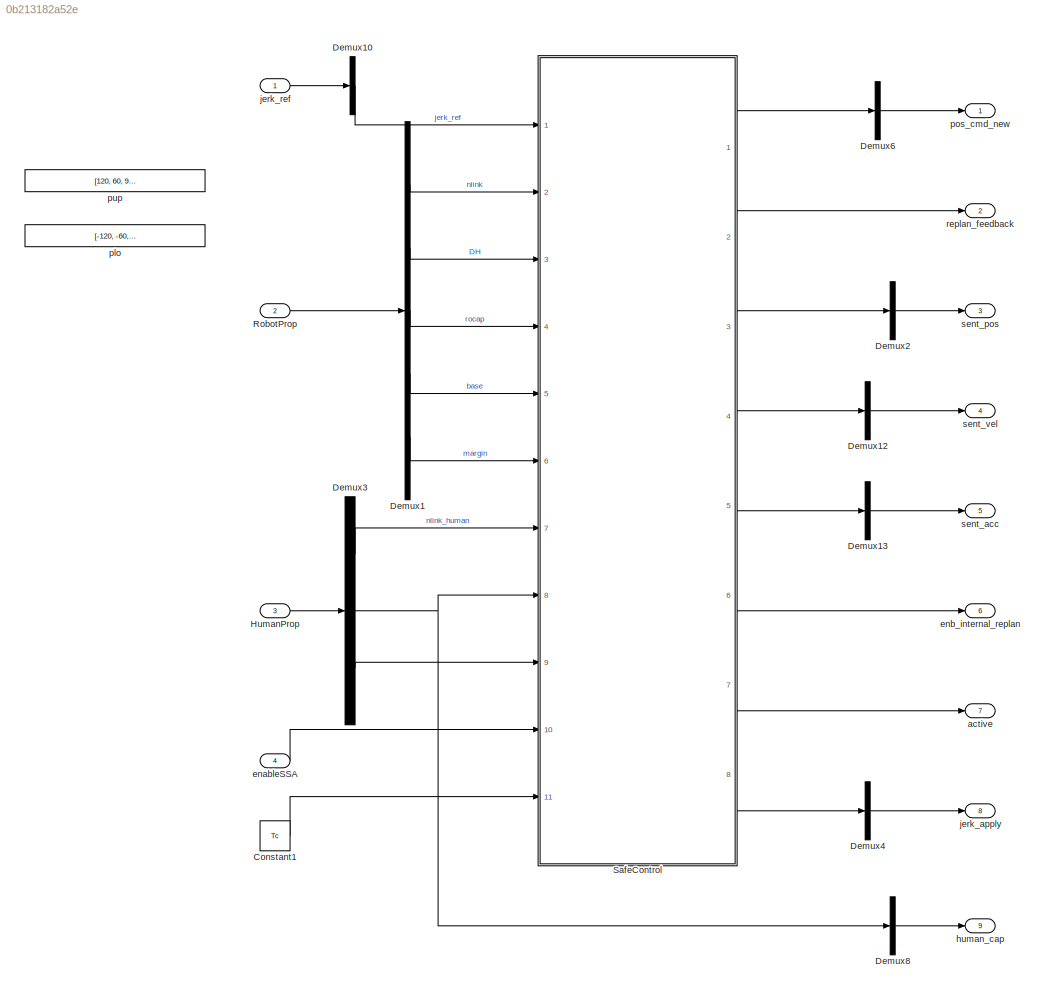
MODEL slx_0b213182a52e
KIND model
CONFIG AbsTol = auto
CONFIG EnableMultiTasking = off
CONFIG FixedStep = 0.008
CONFIG MaxStep = auto
CONFIG MinStep = auto
CONFIG RelTol = 1e-3
CONFIG SampleTimeConstraint = Unconstrained
CONFIG SolverName = FixedStepAuto
CONFIG StartTime = 0.0
CONFIG StopTime = inf
BLOCK [Constant] Constant1
  Value = Tc
BLOCK [Demux] Demux1
  Outputs = [1,40,70,3,1]
  Ports = [1, 5]
BLOCK [Demux] Demux10
  Outputs = [9]
  Ports = [1, 1]
BLOCK [Demux] Demux12
  Outputs = [6]
  Ports = [1, 1]
BLOCK [Demux] Demux13
  Outputs = [6]
  Ports = [1, 1]
BLOCK [Demux] Demux2
  Outputs = [6]
  Ports = [1, 1]
BLOCK [Demux] Demux3
  Outputs = [1,70,60]
  Ports = [1, 3]
BLOCK [Demux] Demux4
  Outputs = [6]
  Ports = [1, 1]
BLOCK [Demux] Demux6
  Outputs = [21]
  Ports = [1, 1]
BLOCK [Demux] Demux8
  Outputs = [70]
  Ports = [1, 1]
BLOCK [Inport] HumanProp
  Port = 3
BLOCK [Inport] RobotProp
  Port = 2
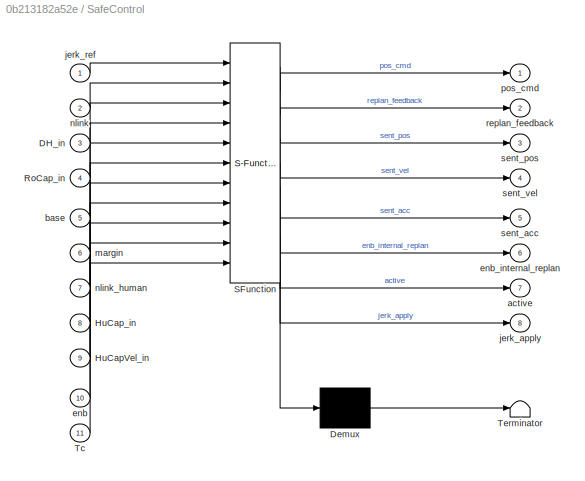
BLOCK [SubSystem] SafeControl
  ErrorFcn = Stateflow.Translate.translate
  PermitHierarchicalResolution = ExplicitOnly
  Ports = [11, 8]
  RequestExecContextInheritance = off
  SFBlockType = MATLAB Function
  TreatAsAtomicUnit = on
BLOCK [Demux] SafeControl/ Demux 
  Outputs = 1
  Ports = [1, 1]
BLOCK [S-Function] SafeControl/ SFunction 
  EnableBusSupport = on
  FunctionName = sf_sfun
  PortCounts = [11 9]
  Ports = [11, 9]
  SFcnIsStateOwnerBlock = off
  SFunctionDeploymentMode = off
  Tag = Stateflow S-Function 4
BLOCK [Terminator] SafeControl/ Terminator 
BLOCK [Inport] SafeControl/DH_in
  Port = 3
BLOCK [Inport] SafeControl/HuCapVel_in
  Port = 9
BLOCK [Inport] SafeControl/HuCap_in
  Port = 8
BLOCK [Inport] SafeControl/RoCap_in
  Port = 4
BLOCK [Inport] SafeControl/Tc
  Port = 11
BLOCK [Outport] SafeControl/active
  Port = 7
BLOCK [Inport] SafeControl/base
  Port = 5
BLOCK [Inport] SafeControl/enb
  Port = 10
BLOCK [Outport] SafeControl/enb_internal_replan
  Port = 6
BLOCK [Outport] SafeControl/jerk_apply
  Port = 8
BLOCK [Inport] SafeControl/jerk_ref
BLOCK [Inport] SafeControl/margin
  Port = 6
BLOCK [Inport] SafeControl/nlink
  Port = 2
BLOCK [Inport] SafeControl/nlink_human
  Port = 7
BLOCK [Outport] SafeControl/pos_cmd
  VectorParamsAs1DForOutWhenUnconnected = off
BLOCK [Outport] SafeControl/replan_feedback
  Port = 2
BLOCK [Outport] SafeControl/sent_acc
  Port = 5
BLOCK [Outport] SafeControl/sent_pos
  Port = 3
BLOCK [Outport] SafeControl/sent_vel
  Port = 4
BLOCK [Outport] active
  Port = 7
  VectorParamsAs1DForOutWhenUnconnected = off
BLOCK [Inport] enableSSA
  Port = 4
BLOCK [Outport] enb_internal_replan
  Port = 6
  VectorParamsAs1DForOutWhenUnconnected = off
BLOCK [Outport] human_cap
  Port = 9
  VectorParamsAs1DForOutWhenUnconnected = off
BLOCK [Outport] jerk_apply
  Port = 8
  VectorParamsAs1DForOutWhenUnconnected = off
BLOCK [Inport] jerk_ref
BLOCK [Constant] plo
  Value = [-120, -60, -80, -180, -135, -210] + 3
BLOCK [Outport] pos_cmd_new
  VectorParamsAs1DForOutWhenUnconnected = off
BLOCK [Constant] pup
  Value = [120, 60, 90, 180, 45, 210] - 3
BLOCK [Outport] replan_feedback
  Port = 2
  VectorParamsAs1DForOutWhenUnconnected = off
BLOCK [Outport] sent_acc
  Port = 5
  VectorParamsAs1DForOutWhenUnconnected = off
BLOCK [Outport] sent_pos
  Port = 3
  VectorParamsAs1DForOutWhenUnconnected = off
BLOCK [Outport] sent_vel
  Port = 4
  VectorParamsAs1DForOutWhenUnconnected = off
LINE Constant1:1 -> SafeControl:11
LINE Demux10:1 -> SafeControl:1
LINE Demux12:1 -> sent_vel:1
LINE Demux13:1 -> sent_acc:1
LINE Demux1:1 -> SafeControl:2
LINE Demux1:2 -> SafeControl:3
LINE Demux1:3 -> SafeControl:4
LINE Demux1:4 -> SafeControl:5
LINE Demux1:5 -> SafeControl:6
LINE Demux2:1 -> sent_pos:1
LINE Demux3:1 -> SafeControl:7
NET Demux3:2 -> Demux8:1, SafeControl:8
LINE Demux3:3 -> SafeControl:9
LINE Demux4:1 -> jerk_apply:1
LINE Demux6:1 -> pos_cmd_new:1
LINE Demux8:1 -> human_cap:1
LINE HumanProp:1 -> Demux3:1
LINE RobotProp:1 -> Demux1:1
LINE SafeControl:1 -> Demux6:1
LINE SafeControl:2 -> replan_feedback:1
LINE SafeControl:3 -> Demux2:1
LINE SafeControl:4 -> Demux12:1
LINE SafeControl:5 -> Demux13:1
LINE SafeControl:6 -> enb_internal_replan:1
LINE SafeControl:7 -> active:1
LINE SafeControl:8 -> Demux4:1
LINE enableSSA:1 -> SafeControl:10
LINE jerk_ref:1 -> Demux10:1
note: NET lines group one-source signal fan-out (src -> all destinations, sorted); 1:1 wires keep LINE
CHART SafeControl states=1 transitions=1
  STATE_LABEL 'eML_blk_kernel()'
  STATE_LABEL 'SCRIPT:\n% This function implements the jerk-based safe set algorithm (JSSA).\n% <copyright redacted>\n% \n% Authors:\n% Ruixuan Liu: <email>\n% Rui Chen: <email>\n% Changliu Liu : <email>\n% \n% This program is free software; you can redistribute it and/or\n% modify it under the terms of the GNU General Public License\n% as published by the Free Software Foundation; either version 2\n% of the License, or (at...<+3566ch>'
CHART  states=0 transitions=0
